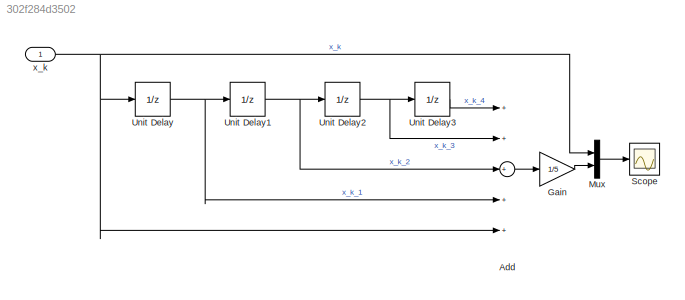
MODEL slx_302f284d3502
KIND model
CONFIG AbsTol = auto
CONFIG EnableMultiTasking = on
CONFIG FixedStep = auto
CONFIG MaxStep = auto
CONFIG MinStep = auto
CONFIG PreLoadFcn = data = xlsread('temp.xls');\nt = data(:,1);\nu = data(:,2);
CONFIG RelTol = 1e-3
CONFIG SampleTimeConstraint = Unconstrained
CONFIG Solver = FixedStepDiscrete
CONFIG SolverName = FixedStepDiscrete
CONFIG StartTime = t(1)
CONFIG StopTime = t(end)
BLOCK [Sum] Add
  InputSameDT = off
  Inputs = +++++
  OutDataTypeStr = Inherit: Inherit via internal rule
  Ports = [5, 1]
  SaturateOnIntegerOverflow = off
BLOCK [Gain] Gain
  Gain = 1/5
  OutDataTypeStr = Inherit: Inherit via internal rule
  ParamDataTypeStr = Inherit: Inherit via internal rule
  SaturateOnIntegerOverflow = off
BLOCK [Mux] Mux
  DisplayOption = bar
  Inputs = 2
  Ports = [2, 1]
BLOCK [Scope] Scope
  Floating = off
  NumInputPorts = 1
  Ports = [1]
  ScopeSpecificationString = Simulink.scopes.TimeScopeBlockCfg('CurrentConfiguration', extmgr.ConfigurationSet(extmgr.Configuration('Core','General UI',true),extmgr.Configuration('Core','Source UI',true),extmgr.Configuration('Sources','WiredSimulink',true,'DataLoggingSaveFormat','StructureWithTime','DataLoggingLimitDataPoints',true,'DataLoggingDecimation','1','DataLoggingDecimateData',true),extmgr.Configuration('Visuals','Tim...<+2017ch>
BLOCK [UnitDelay] Unit Delay
BLOCK [UnitDelay] Unit Delay1
BLOCK [UnitDelay] Unit Delay2
BLOCK [UnitDelay] Unit Delay3
BLOCK [Inport] x_k
  IconDisplay = Port number
LINE Add:1 -> Gain:1
LINE Gain:1 -> Mux:2
LINE Mux:1 -> Scope:1
NET Unit Delay1:1 -> Add:3, Unit Delay2:1
NET Unit Delay2:1 -> Add:2, Unit Delay3:1
LINE Unit Delay3:1 -> Add:1
NET Unit Delay:1 -> Add:4, Unit Delay1:1
NET x_k:1 -> Add:5, Mux:1, Unit Delay:1
note: NET lines group one-source signal fan-out (src -> all destinations, sorted); 1:1 wires keep LINE
